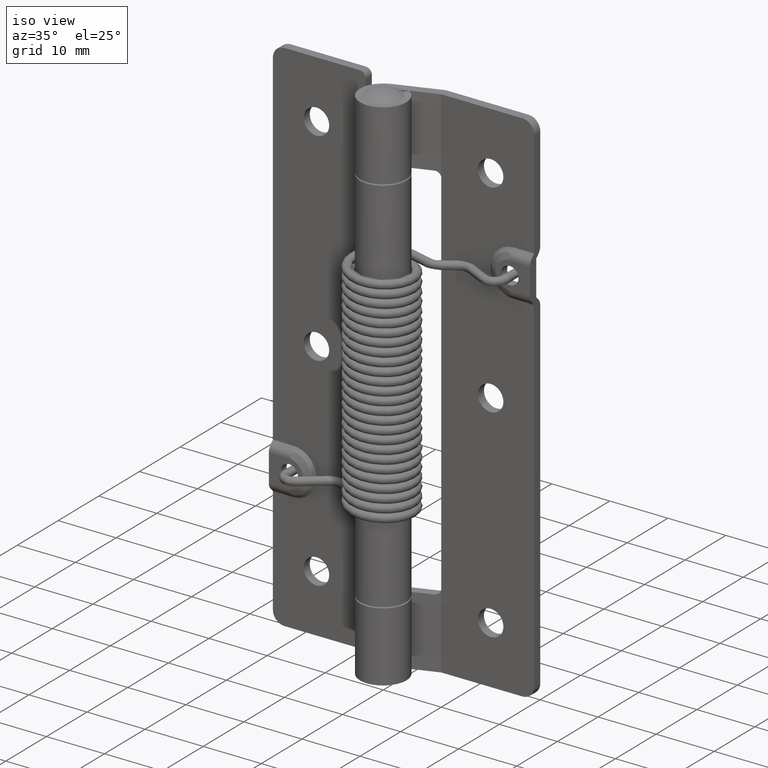
[diagram: clean part render]
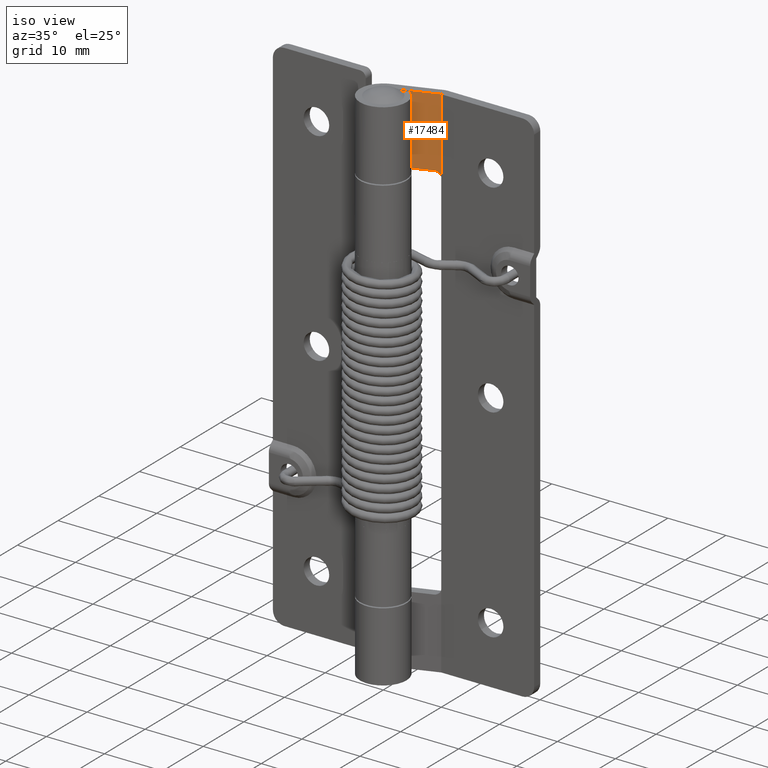
[diagram: same view with one face highlighted and labeled with its STEP entity id]
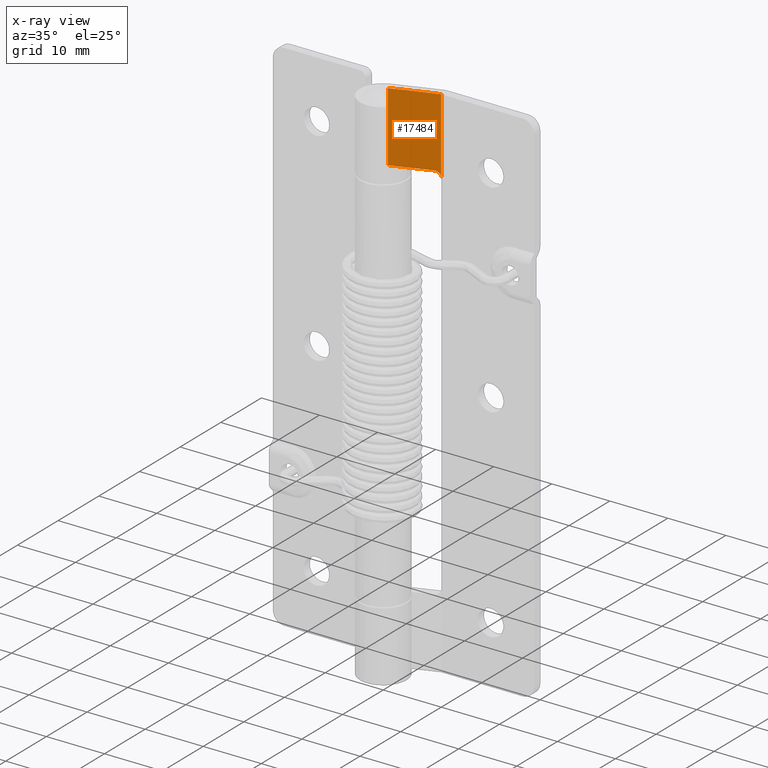
[diagram: x-ray of the same camera — body ghosted, the highlighted face saturated]
A machine part, iso view. The second image highlights one B-rep face of the part: STEP entity #17484.
The next image is the same camera in x-ray: the body ghosted, the highlighted face saturated — about 0% of this face is hidden behind the body in this view.
In plain terms, the highlighted face is a freeform B-spline surface patch.
Its self-contained STEP definition (entity closure, byte-faithful):
#16912=CARTESIAN_POINT('',(5.499999999964700,4.639600671936110,78.0));
#16913=VERTEX_POINT('',#16912);
#16914=CARTESIAN_POINT('',(6.499999999964700,5.0,77.0));
#16915=VERTEX_POINT('',#16914);
#16916=CARTESIAN_POINT('',(5.499999999964656,4.639600671936234,78.0));
#16917=CARTESIAN_POINT('',(6.499999880755417,4.999999957037078,78.0));
#16918=CARTESIAN_POINT('',(6.499999999964693,5.000000000000020,77.000000119209290));
#16926=(BOUNDED_CURVE()B_SPLINE_CURVE(2,(#16916,#16917,#16918),.UNSPECIFIED.,.F.,.U.)CURVE()GEOMETRIC_REPRESENTATION_ITEM()QUASI_UNIFORM_CURVE()RATIONAL_B_SPLINE_CURVE((1.0,0.707106823333433,1.0))REPRESENTATION_ITEM(''));
#16927=EDGE_CURVE('',#16913,#16915,#16926,.T.);
#17156=CARTESIAN_POINT('',(-0.847630051286980,2.351919066667600,78.0));
#17157=VERTEX_POINT('',#17156);
#17158=CARTESIAN_POINT('',(5.499999999964700,4.639600671936110,78.0));
#17159=CARTESIAN_POINT('',(-0.847630051286980,2.351919066667600,78.0));
#17160=QUASI_UNIFORM_CURVE('',1,(#17158,#17159),.UNSPECIFIED.,.F.,.U.);
#17161=EDGE_CURVE('',#16913,#17157,#17160,.T.);
#17309=CARTESIAN_POINT('',(6.499999999965300,5.0,90.0));
#17310=VERTEX_POINT('',#17309);
#17353=CARTESIAN_POINT('',(-0.847630051286980,2.351919066667600,90.0));
#17354=VERTEX_POINT('',#17353);
#17373=CARTESIAN_POINT('',(-0.847630051286980,2.351919066667600,90.0));
#17374=CARTESIAN_POINT('',(6.499999999965300,5.0,90.0));
#17375=QUASI_UNIFORM_CURVE('',1,(#17373,#17374),.UNSPECIFIED.,.F.,.U.);
#17376=EDGE_CURVE('',#17354,#17310,#17375,.T.);
#17440=CARTESIAN_POINT('',(-0.847630051286980,2.351919066667600,90.0));
#17441=CARTESIAN_POINT('',(-0.847630051286980,2.351919066667600,78.0));
#17442=QUASI_UNIFORM_CURVE('',1,(#17440,#17441),.UNSPECIFIED.,.F.,.U.);
#17443=EDGE_CURVE('',#17354,#17157,#17442,.T.);
#17468=CARTESIAN_POINT('',(6.867014106784183,5.132271637487557,76.350650025196515));
#17469=CARTESIAN_POINT('',(-1.214644355184692,2.219647358153070,76.350650025196515));
#17470=CARTESIAN_POINT('',(6.867014106784183,5.132271637487557,90.649350323490651));
#17471=CARTESIAN_POINT('',(-1.214644355184692,2.219647358153070,90.649350323490651));
#17472=B_SPLINE_SURFACE_WITH_KNOTS('',1,1,((#17468,#17470),(#17469,#17471)),.UNSPECIFIED.,.F.,.F.,.U.,(2,2),(2,2),(0.0,8.590493797709296),(0.0,14.298700298294140),.UNSPECIFIED.);
#17473=ORIENTED_EDGE('',*,*,#17161,.F.);
#17474=ORIENTED_EDGE('',*,*,#16927,.T.);
#17475=CARTESIAN_POINT('',(6.499999999965300,5.0,90.0));
#17476=CARTESIAN_POINT('',(6.499999999964700,5.0,77.0));
#17477=QUASI_UNIFORM_CURVE('',1,(#17475,#17476),.UNSPECIFIED.,.F.,.U.);
#17478=EDGE_CURVE('',#17310,#16915,#17477,.T.);
#17479=ORIENTED_EDGE('',*,*,#17478,.F.);
#17480=ORIENTED_EDGE('',*,*,#17376,.F.);
#17481=ORIENTED_EDGE('',*,*,#17443,.T.);
#17482=EDGE_LOOP('',(#17473,#17474,#17479,#17480,#17481));
#17483=FACE_OUTER_BOUND('',#17482,.T.);
#17484=ADVANCED_FACE('',(#17483),#17472,.F.);